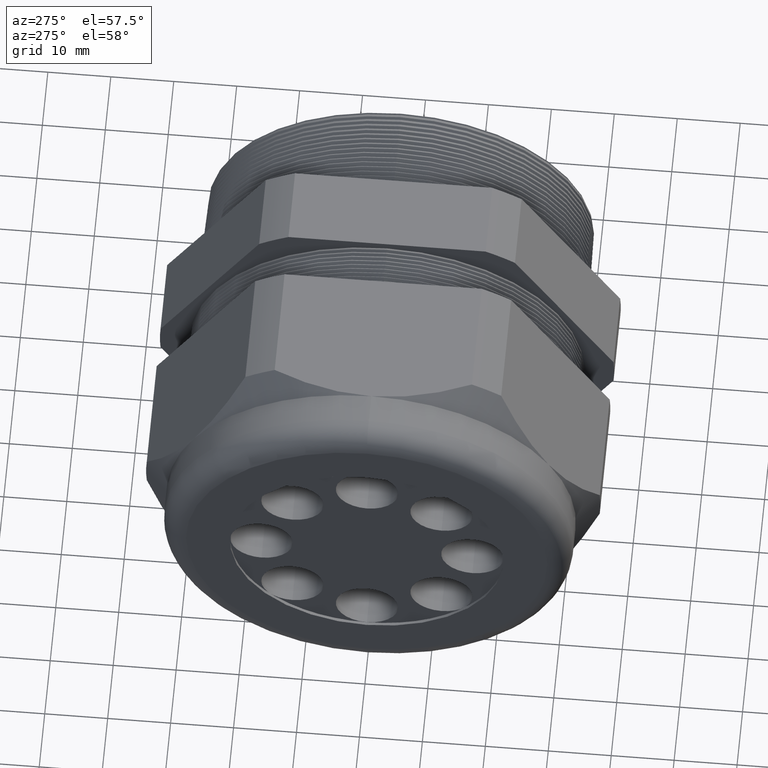
[diagram: clean part render]
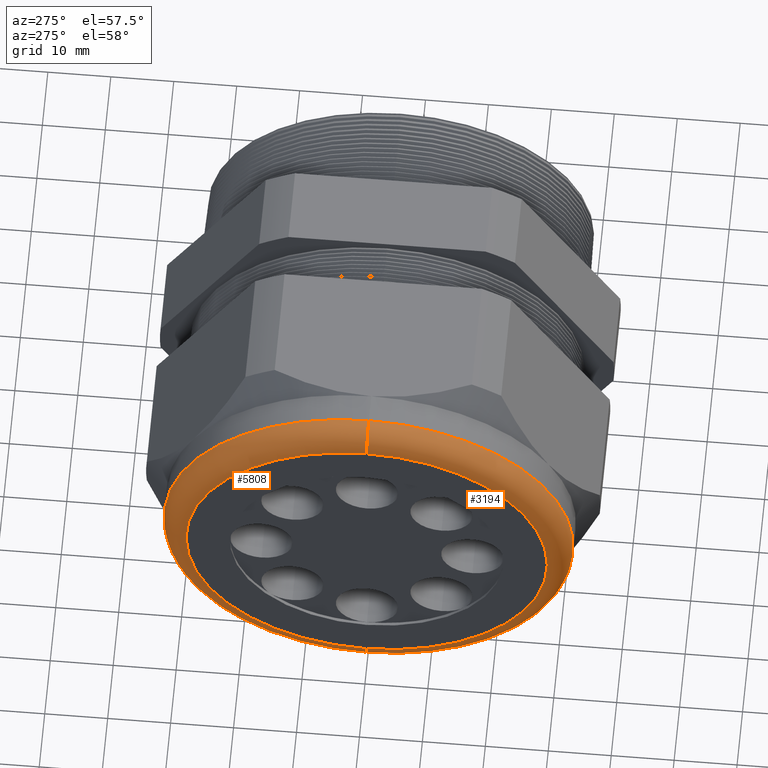
[diagram: same view with one multi-face feature highlighted, each face labeled with its STEP entity id]
A machine part, auxiliary view. The highlighted faces form ONE feature: a constant-radius fillet chain: 2 tangent blend faces with common blend radius 3.81 mm. The faces share edges in the B-rep.
Their STEP definitions:
[1] entity #5808 (Torus):
#1453 = DIRECTION ( 'NONE',  ( 0.0000000000000000000, 0.0000000000000000000, 1.000000000000000000 ) ) ;
#1454 = DIRECTION ( 'NONE',  ( -1.000000000000000000, 0.0000000000000000000, 0.0000000000000000000 ) ) ;
#1455 = AXIS2_PLACEMENT_3D ( 'NONE', #1458, #1454, #1453 ) ;
#1456 = TOROIDAL_SURFACE ( 'NONE', #1455, 1.129999999999999900, 0.1499999999999999900 ) ;
#1458 = CARTESIAN_POINT ( 'NONE',  ( -2.089999999999999400, 0.0000000000000000000, 0.0000000000000000000 ) ) ;
#1459 = FACE_OUTER_BOUND ( 'NONE', #5807, .T. ) ;
#1460 = CARTESIAN_POINT ( 'NONE',  ( -2.089999999999999400, 1.567547902908612300E-016, 1.280000000000000000 ) ) ;
#1461 = CARTESIAN_POINT ( 'NONE',  ( -2.089999999999999400, 0.0000000000000000000, -1.280000000000000000 ) ) ;
#1462 = DIRECTION ( 'NONE',  ( 0.0000000000000000000, 0.0000000000000000000, 1.000000000000000000 ) ) ;
#1463 = DIRECTION ( 'NONE',  ( 1.000000000000000000, 0.0000000000000000000, 0.0000000000000000000 ) ) ;
#1464 = CARTESIAN_POINT ( 'NONE',  ( -2.089999999999999400, 0.0000000000000000000, 0.0000000000000000000 ) ) ;
#1465 = AXIS2_PLACEMENT_3D ( 'NONE', #1464, #1463, #1462 ) ;
#1466 = CIRCLE ( 'NONE', #1465, 1.280000000000000000 ) ;
#1467 = DIRECTION ( 'NONE',  ( 0.0000000000000000000, -1.224646799147352500E-016, 1.000000000000000000 ) ) ;
#1468 = DIRECTION ( 'NONE',  ( 0.0000000000000000000, 1.000000000000000000, 1.224646799147353200E-016 ) ) ;
#1469 = CARTESIAN_POINT ( 'NONE',  ( -2.089999999999999400, 1.383850883036509000E-016, -1.129999999999999900 ) ) ;
#1470 = AXIS2_PLACEMENT_3D ( 'NONE', #1469, #1468, #1467 ) ;
#1471 = CIRCLE ( 'NONE', #1470, 0.1500000000000000500 ) ;
#1472 = CARTESIAN_POINT ( 'NONE',  ( -2.239999999999999800, 1.475699392972560400E-016, -1.129999999999999900 ) ) ;
#1473 = DIRECTION ( 'NONE',  ( 0.0000000000000000000, 0.0000000000000000000, 1.000000000000000000 ) ) ;
#1474 = DIRECTION ( 'NONE',  ( -1.000000000000000000, 0.0000000000000000000, 0.0000000000000000000 ) ) ;
#1475 = CARTESIAN_POINT ( 'NONE',  ( -2.239999999999999800, 0.0000000000000000000, 0.0000000000000000000 ) ) ;
#1476 = AXIS2_PLACEMENT_3D ( 'NONE', #1475, #1474, #1473 ) ;
#1477 = CIRCLE ( 'NONE', #1476, 1.129999999999999900 ) ;
#1587 = DIRECTION ( 'NONE',  ( 0.0000000000000000000, 0.0000000000000000000, -1.000000000000000000 ) ) ;
#1588 = DIRECTION ( 'NONE',  ( 0.0000000000000000000, -1.000000000000000000, 0.0000000000000000000 ) ) ;
#1589 = CARTESIAN_POINT ( 'NONE',  ( -2.089999999999999400, 0.0000000000000000000, 1.129999999999999900 ) ) ;
#1590 = AXIS2_PLACEMENT_3D ( 'NONE', #1589, #1588, #1587 ) ;
#1595 = CIRCLE ( 'NONE', #1590, 0.1500000000000000500 ) ;
#1603 = CARTESIAN_POINT ( 'NONE',  ( -2.239999999999999800, 0.0000000000000000000, 1.129999999999999900 ) ) ;
#5797 = ORIENTED_EDGE ( 'NONE', *, *, #5798, .F. ) ;
#5798 = EDGE_CURVE ( 'NONE', #5868, #5799, #1477, .T. ) ;
#5799 = VERTEX_POINT ( 'NONE', #1472 ) ;
#5801 = EDGE_CURVE ( 'NONE', #5804, #5799, #1471, .T. ) ;
#5802 = ORIENTED_EDGE ( 'NONE', *, *, #5801, .T. ) ;
#5803 = EDGE_CURVE ( 'NONE', #5804, #5805, #1466, .T. ) ;
#5804 = VERTEX_POINT ( 'NONE', #1461 ) ;
#5805 = VERTEX_POINT ( 'NONE', #1460 ) ;
#5806 = ORIENTED_EDGE ( 'NONE', *, *, #5803, .F. ) ;
#5807 = EDGE_LOOP ( 'NONE', ( #5806, #5802, #5797, #5869 ) ) ;
#5808 = ADVANCED_FACE ( 'NONE', ( #1459 ), #1456, .T. ) ;
#5868 = VERTEX_POINT ( 'NONE', #1603 ) ;
#5869 = ORIENTED_EDGE ( 'NONE', *, *, #5872, .F. ) ;
#5872 = EDGE_CURVE ( 'NONE', #5805, #5868, #1595, .T. ) ;
[2] entity #3194 (Torus):
#271 = DIRECTION ( 'NONE',  ( 0.0000000000000000000, 0.0000000000000000000, 1.000000000000000000 ) ) ;
#272 = DIRECTION ( 'NONE',  ( 1.000000000000000000, 0.0000000000000000000, 0.0000000000000000000 ) ) ;
#273 = CARTESIAN_POINT ( 'NONE',  ( -2.089999999999999400, 0.0000000000000000000, 0.0000000000000000000 ) ) ;
#274 = AXIS2_PLACEMENT_3D ( 'NONE', #273, #272, #271 ) ;
#275 = CIRCLE ( 'NONE', #274, 1.280000000000000000 ) ;
#396 = DIRECTION ( 'NONE',  ( -1.000000000000000000, 0.0000000000000000000, 0.0000000000000000000 ) ) ;
#397 = AXIS2_PLACEMENT_3D ( 'NONE', #404, #396, #457 ) ;
#398 = CIRCLE ( 'NONE', #397, 1.129999999999999900 ) ;
#404 = CARTESIAN_POINT ( 'NONE',  ( -2.239999999999999800, 0.0000000000000000000, 0.0000000000000000000 ) ) ;
#457 = DIRECTION ( 'NONE',  ( 0.0000000000000000000, 0.0000000000000000000, 1.000000000000000000 ) ) ;
#727 = DIRECTION ( 'NONE',  ( 0.0000000000000000000, 0.0000000000000000000, 1.000000000000000000 ) ) ;
#728 = DIRECTION ( 'NONE',  ( -1.000000000000000000, 0.0000000000000000000, 0.0000000000000000000 ) ) ;
#729 = AXIS2_PLACEMENT_3D ( 'NONE', #732, #728, #727 ) ;
#730 = TOROIDAL_SURFACE ( 'NONE', #729, 1.129999999999999900, 0.1499999999999999900 ) ;
#732 = CARTESIAN_POINT ( 'NONE',  ( -2.089999999999999400, 0.0000000000000000000, 0.0000000000000000000 ) ) ;
#733 = FACE_OUTER_BOUND ( 'NONE', #3195, .T. ) ;
#1460 = CARTESIAN_POINT ( 'NONE',  ( -2.089999999999999400, 1.567547902908612300E-016, 1.280000000000000000 ) ) ;
#1461 = CARTESIAN_POINT ( 'NONE',  ( -2.089999999999999400, 0.0000000000000000000, -1.280000000000000000 ) ) ;
#1467 = DIRECTION ( 'NONE',  ( 0.0000000000000000000, -1.224646799147352500E-016, 1.000000000000000000 ) ) ;
#1468 = DIRECTION ( 'NONE',  ( 0.0000000000000000000, 1.000000000000000000, 1.224646799147353200E-016 ) ) ;
#1469 = CARTESIAN_POINT ( 'NONE',  ( -2.089999999999999400, 1.383850883036509000E-016, -1.129999999999999900 ) ) ;
#1470 = AXIS2_PLACEMENT_3D ( 'NONE', #1469, #1468, #1467 ) ;
#1471 = CIRCLE ( 'NONE', #1470, 0.1500000000000000500 ) ;
#1472 = CARTESIAN_POINT ( 'NONE',  ( -2.239999999999999800, 1.475699392972560400E-016, -1.129999999999999900 ) ) ;
#1587 = DIRECTION ( 'NONE',  ( 0.0000000000000000000, 0.0000000000000000000, -1.000000000000000000 ) ) ;
#1588 = DIRECTION ( 'NONE',  ( 0.0000000000000000000, -1.000000000000000000, 0.0000000000000000000 ) ) ;
#1589 = CARTESIAN_POINT ( 'NONE',  ( -2.089999999999999400, 0.0000000000000000000, 1.129999999999999900 ) ) ;
#1590 = AXIS2_PLACEMENT_3D ( 'NONE', #1589, #1588, #1587 ) ;
#1595 = CIRCLE ( 'NONE', #1590, 0.1500000000000000500 ) ;
#1603 = CARTESIAN_POINT ( 'NONE',  ( -2.239999999999999800, 0.0000000000000000000, 1.129999999999999900 ) ) ;
#2959 = EDGE_CURVE ( 'NONE', #5805, #5804, #275, .T. ) ;
#3023 = EDGE_CURVE ( 'NONE', #5799, #5868, #398, .T. ) ;
#3194 = ADVANCED_FACE ( 'NONE', ( #733 ), #730, .T. ) ;
#3195 = EDGE_LOOP ( 'NONE', ( #3196, #3197, #3198, #3199 ) ) ;
#3196 = ORIENTED_EDGE ( 'NONE', *, *, #5801, .F. ) ;
#3197 = ORIENTED_EDGE ( 'NONE', *, *, #2959, .F. ) ;
#3198 = ORIENTED_EDGE ( 'NONE', *, *, #5872, .T. ) ;
#3199 = ORIENTED_EDGE ( 'NONE', *, *, #3023, .F. ) ;
#5799 = VERTEX_POINT ( 'NONE', #1472 ) ;
#5801 = EDGE_CURVE ( 'NONE', #5804, #5799, #1471, .T. ) ;
#5804 = VERTEX_POINT ( 'NONE', #1461 ) ;
#5805 = VERTEX_POINT ( 'NONE', #1460 ) ;
#5868 = VERTEX_POINT ( 'NONE', #1603 ) ;
#5872 = EDGE_CURVE ( 'NONE', #5805, #5868, #1595, .T. ) ;